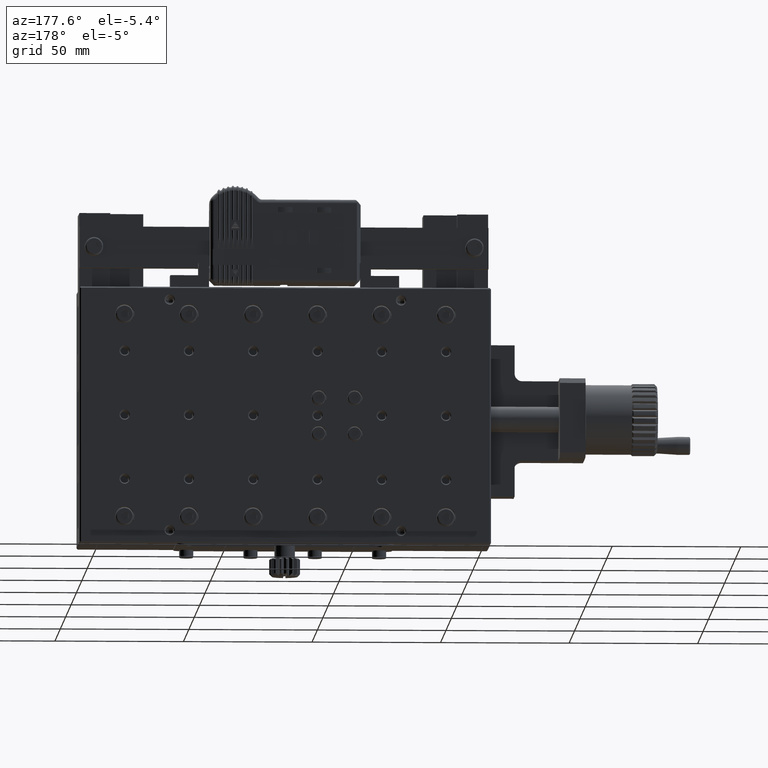
[diagram: clean part render]
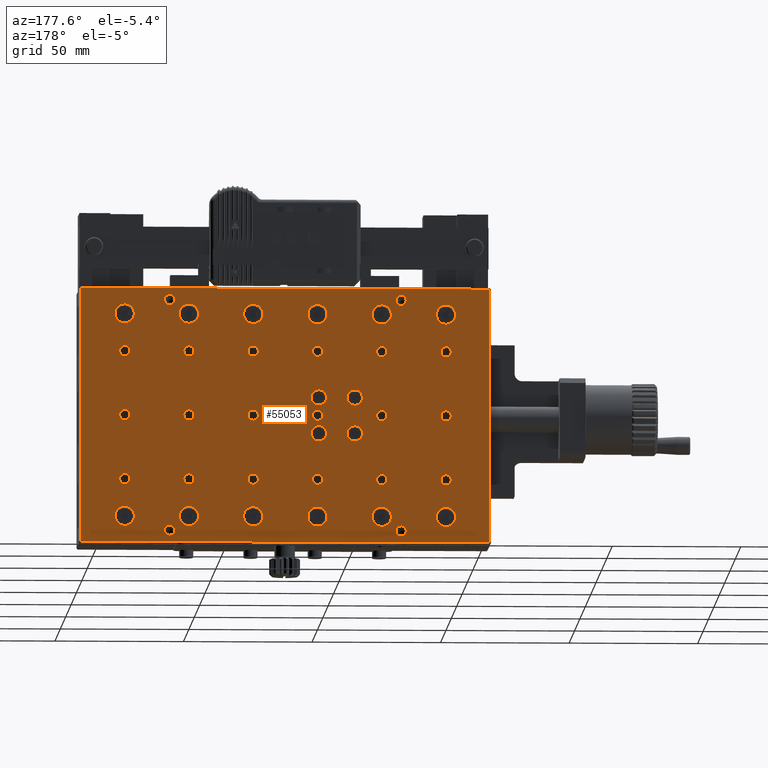
[diagram: same view with one face highlighted and labeled with its STEP entity id]
A machine part, auxiliary view. The second image highlights one B-rep face of the part: STEP entity #55053.
In plain terms, the highlighted planar face has unit normal (0, 1, 0).
Its self-contained STEP definition (entity closure, byte-faithful):
#200 = CARTESIAN_POINT ( 'NONE',  ( -17.50000000000000000, 30.00000000000000000, 39.50000000000000000 ) ) ;
#291 = FACE_BOUND ( 'NONE', #27327, .T. ) ;
#507 = EDGE_LOOP ( 'NONE', ( #53702 ) ) ;
#518 = CARTESIAN_POINT ( 'NONE',  ( -92.50000000000000000, 29.99999999994861355, 25.00000000000000000 ) ) ;
#593 = VERTEX_POINT ( 'NONE', #61540 ) ;
#816 = AXIS2_PLACEMENT_3D ( 'NONE', #200, #11181, #56134 ) ;
#910 = EDGE_LOOP ( 'NONE', ( #34605 ) ) ;
#1724 = EDGE_CURVE ( 'NONE', #3270, #3270, #4641, .T. ) ;
#1951 = FACE_BOUND ( 'NONE', #49653, .T. ) ;
#1953 = DIRECTION ( 'NONE',  ( 1.000000000000000000, 0.000000000000000000, -0.000000000000000000 ) ) ;
#2015 = ORIENTED_EDGE ( 'NONE', *, *, #23332, .T. ) ;
#2084 = ORIENTED_EDGE ( 'NONE', *, *, #37427, .T. ) ;
#2217 = CARTESIAN_POINT ( 'NONE',  ( -17.50000000000000000, 29.99999999994861355, -23.00000000002455636 ) ) ;
#2270 = DIRECTION ( 'NONE',  ( 0.000000000000000000, -0.000000000000000000, 1.000000000000000000 ) ) ;
#2345 = EDGE_LOOP ( 'NONE', ( #13279 ) ) ;
#2346 = CARTESIAN_POINT ( 'NONE',  ( -67.50000000000000000, 30.00000000000000000, 39.50000000000000000 ) ) ;
#2377 = DIRECTION ( 'NONE',  ( 0.000000000000000000, -1.000000000000000000, -0.000000000000000000 ) ) ;
#2528 = VERTEX_POINT ( 'NONE', #22826 ) ;
#2614 = EDGE_LOOP ( 'NONE', ( #42379 ) ) ;
#3270 = VERTEX_POINT ( 'NONE', #54514 ) ;
#3573 = CARTESIAN_POINT ( 'NONE',  ( -92.50000000000000000, 29.99999999994861355, -25.00000000000000000 ) ) ;
#3679 = DIRECTION ( 'NONE',  ( 0.000000000000000000, 0.000000000000000000, 1.000000000000000000 ) ) ;
#3708 = AXIS2_PLACEMENT_3D ( 'NONE', #42658, #2377, #62984 ) ;
#3776 = DIRECTION ( 'NONE',  ( 0.000000000000000000, 0.000000000000000000, 1.000000000000000000 ) ) ;
#3843 = ORIENTED_EDGE ( 'NONE', *, *, #26673, .T. ) ;
#3942 = CARTESIAN_POINT ( 'NONE',  ( -142.5000000000000284, 30.00000000000000000, 43.25000000000000000 ) ) ;
#4238 = ORIENTED_EDGE ( 'NONE', *, *, #63810, .T. ) ;
#4275 = VERTEX_POINT ( 'NONE', #3942 ) ;
#4442 = CARTESIAN_POINT ( 'NONE',  ( -142.5000000000000284, 29.99999999994861355, 25.00000000000000000 ) ) ;
#4571 = EDGE_CURVE ( 'NONE', #4929, #4929, #45488, .T. ) ;
#4641 = CIRCLE ( 'NONE', #21657, 3.000000000000000000 ) ;
#4823 = CARTESIAN_POINT ( 'NONE',  ( -67.50000000000000000, 30.00000000000000000, 43.25000000000000000 ) ) ;
#4929 = VERTEX_POINT ( 'NONE', #34217 ) ;
#5108 = DIRECTION ( 'NONE',  ( 0.000000000000000000, 0.000000000000000000, 1.000000000000000000 ) ) ;
#5256 = DIRECTION ( 'NONE',  ( -0.000000000000000000, 0.000000000000000000, -1.000000000000000000 ) ) ;
#5285 = CIRCLE ( 'NONE', #41420, 2.000000000009549694 ) ;
#5322 = EDGE_CURVE ( 'NONE', #44233, #44233, #10487, .T. ) ;
#5583 = CARTESIAN_POINT ( 'NONE',  ( -35.00000000000000000, 29.99999999994861355, 47.00000000002546585 ) ) ;
#6022 = EDGE_CURVE ( 'NONE', #4275, #4275, #46685, .T. ) ;
#6140 = VERTEX_POINT ( 'NONE', #21128 ) ;
#6240 = CIRCLE ( 'NONE', #43448, 3.000000000000000000 ) ;
#6260 = VERTEX_POINT ( 'NONE', #20899 ) ;
#6432 = AXIS2_PLACEMENT_3D ( 'NONE', #63576, #23257, #17949 ) ;
#6793 = EDGE_LOOP ( 'NONE', ( #17508 ) ) ;
#6826 = AXIS2_PLACEMENT_3D ( 'NONE', #46167, #56170, #25206 ) ;
#6903 = EDGE_LOOP ( 'NONE', ( #51430 ) ) ;
#6938 = FACE_BOUND ( 'NONE', #6793, .T. ) ;
#7165 = EDGE_CURVE ( 'NONE', #26877, #26877, #56420, .T. ) ;
#7170 = EDGE_LOOP ( 'NONE', ( #27929 ) ) ;
#7202 = CIRCLE ( 'NONE', #816, 3.749999999999996447 ) ;
#7216 = EDGE_LOOP ( 'NONE', ( #18420, #59554, #7742, #7572 ) ) ;
#7229 = VERTEX_POINT ( 'NONE', #57818 ) ;
#7351 = DIRECTION ( 'NONE',  ( -0.000000000000000000, -1.000000000000000000, -0.000000000000000000 ) ) ;
#7386 = CARTESIAN_POINT ( 'NONE',  ( -17.50000000000000000, 30.00000000000000000, -39.50000000000000000 ) ) ;
#7563 = DIRECTION ( 'NONE',  ( 0.000000000000000000, 0.000000000000000000, 1.000000000000000000 ) ) ;
#7572 = ORIENTED_EDGE ( 'NONE', *, *, #42808, .T. ) ;
#7742 = ORIENTED_EDGE ( 'NONE', *, *, #45109, .T. ) ;
#7853 = EDGE_CURVE ( 'NONE', #51517, #51517, #22336, .T. ) ;
#7904 = FACE_BOUND ( 'NONE', #37505, .T. ) ;
#7996 = EDGE_CURVE ( 'NONE', #21235, #21235, #45009, .T. ) ;
#8008 = CIRCLE ( 'NONE', #64379, 3.749999999999996447 ) ;
#8242 = FACE_BOUND ( 'NONE', #39453, .T. ) ;
#8326 = EDGE_LOOP ( 'NONE', ( #31666 ) ) ;
#8426 = DIRECTION ( 'NONE',  ( 0.000000000000000000, 0.000000000000000000, 1.000000000000000000 ) ) ;
#8444 = CARTESIAN_POINT ( 'NONE',  ( -17.50000000000000000, 30.00000000006230039, 2.000000000009549694 ) ) ;
#8571 = FACE_BOUND ( 'NONE', #29792, .T. ) ;
#8605 = AXIS2_PLACEMENT_3D ( 'NONE', #54289, #59634, #63663 ) ;
#8909 = EDGE_LOOP ( 'NONE', ( #61962 ) ) ;
#8974 = EDGE_CURVE ( 'NONE', #593, #593, #35820, .T. ) ;
#9164 = EDGE_CURVE ( 'NONE', #6260, #6260, #15407, .T. ) ;
#9253 = VERTEX_POINT ( 'NONE', #24550 ) ;
#9581 = EDGE_LOOP ( 'NONE', ( #19357 ) ) ;
#10434 = CIRCLE ( 'NONE', #14647, 3.000000000000000000 ) ;
#10487 = CIRCLE ( 'NONE', #60467, 2.000000000009549694 ) ;
#10567 = CARTESIAN_POINT ( 'NONE',  ( -67.50000000000000000, 29.99999999994861355, -25.00000000000000000 ) ) ;
#10679 = DIRECTION ( 'NONE',  ( -0.000000000000000000, -1.000000000000000000, -0.000000000000000000 ) ) ;
#10947 = FACE_BOUND ( 'NONE', #910, .T. ) ;
#11169 = EDGE_LOOP ( 'NONE', ( #53454 ) ) ;
#11181 = DIRECTION ( 'NONE',  ( -0.000000000000000000, -1.000000000000000000, -0.000000000000000000 ) ) ;
#11183 = DIRECTION ( 'NONE',  ( 0.000000000000000000, 0.000000000000000000, 1.000000000000000000 ) ) ;
#11222 = EDGE_LOOP ( 'NONE', ( #22032 ) ) ;
#11553 = EDGE_LOOP ( 'NONE', ( #18495 ) ) ;
#11619 = FACE_BOUND ( 'NONE', #17944, .T. ) ;
#11709 = AXIS2_PLACEMENT_3D ( 'NONE', #4442, #18765, #3776 ) ;
#11731 = DIRECTION ( 'NONE',  ( 0.000000000000000000, -1.000000000000000000, -0.000000000000000000 ) ) ;
#11805 = VERTEX_POINT ( 'NONE', #62747 ) ;
#12260 = FACE_BOUND ( 'NONE', #8909, .T. ) ;
#12452 = CARTESIAN_POINT ( 'NONE',  ( -42.50000000000000000, 30.00000000000000000, -35.75000000000000711 ) ) ;
#12459 = CARTESIAN_POINT ( 'NONE',  ( -142.5000000000000284, 30.00000000000000000, -35.75000000000000711 ) ) ;
#12596 = FACE_BOUND ( 'NONE', #2614, .T. ) ;
#12847 = CIRCLE ( 'NONE', #6432, 3.749999999999996447 ) ;
#12946 = ORIENTED_EDGE ( 'NONE', *, *, #4571, .T. ) ;
#13279 = ORIENTED_EDGE ( 'NONE', *, *, #60935, .T. ) ;
#13568 = AXIS2_PLACEMENT_3D ( 'NONE', #518, #61469, #34803 ) ;
#13569 = FACE_BOUND ( 'NONE', #65465, .T. ) ;
#13852 = CARTESIAN_POINT ( 'NONE',  ( -92.50000000000000000, 29.99999999994861355, 0.000000000000000000 ) ) ;
#14006 = CARTESIAN_POINT ( 'NONE',  ( -17.50000000000000000, 29.99999999994861355, -25.00000000000000000 ) ) ;
#14398 = CARTESIAN_POINT ( 'NONE',  ( -125.0000000000000000, 29.99999999994861355, -43.00000000006320988 ) ) ;
#14544 = CARTESIAN_POINT ( 'NONE',  ( -92.50000000000000000, 30.00000000000000000, 39.50000000000000000 ) ) ;
#14579 = DIRECTION ( 'NONE',  ( 0.000000000000000000, 0.000000000000000000, 1.000000000000000000 ) ) ;
#14647 = AXIS2_PLACEMENT_3D ( 'NONE', #18022, #24966, #55931 ) ;
#14741 = CARTESIAN_POINT ( 'NONE',  ( -142.5000000000000284, 30.00000000006230039, 2.000000000009549694 ) ) ;
#14750 = CARTESIAN_POINT ( 'NONE',  ( -35.00000000000000000, 29.99999999994861355, -43.00000000006320988 ) ) ;
#14986 = ORIENTED_EDGE ( 'NONE', *, *, #5322, .T. ) ;
#15407 = CIRCLE ( 'NONE', #44105, 3.749999999999996447 ) ;
#15620 = FACE_BOUND ( 'NONE', #53981, .T. ) ;
#15709 = CIRCLE ( 'NONE', #39117, 3.749999999999996447 ) ;
#15993 = EDGE_CURVE ( 'NONE', #11805, #11805, #51452, .T. ) ;
#16029 = AXIS2_PLACEMENT_3D ( 'NONE', #56449, #20160, #40477 ) ;
#16065 = DIRECTION ( 'NONE',  ( 0.000000000000000000, 0.000000000000000000, 1.000000000000000000 ) ) ;
#16318 = CARTESIAN_POINT ( 'NONE',  ( -142.5000000000000284, 29.99999999994861355, -25.00000000000000000 ) ) ;
#16986 = CARTESIAN_POINT ( 'NONE',  ( -107.0000000000000000, 30.00000000000000000, -7.000000000000000000 ) ) ;
#17253 = FACE_BOUND ( 'NONE', #11222, .T. ) ;
#17254 = VECTOR ( 'NONE', #24833, 1000.000000000000000 ) ;
#17437 = VERTEX_POINT ( 'NONE', #42591 ) ;
#17508 = ORIENTED_EDGE ( 'NONE', *, *, #20330, .T. ) ;
#17543 = CARTESIAN_POINT ( 'NONE',  ( -35.00000000000000000, 29.99999999994861355, 45.00000000000000000 ) ) ;
#17775 = VERTEX_POINT ( 'NONE', #38085 ) ;
#17925 = CARTESIAN_POINT ( 'NONE',  ( -125.0000000000000000, 29.99999999994861355, -45.00000000000000000 ) ) ;
#17944 = EDGE_LOOP ( 'NONE', ( #37110 ) ) ;
#17949 = DIRECTION ( 'NONE',  ( 0.000000000000000000, 0.000000000000000000, 1.000000000000000000 ) ) ;
#17976 = AXIS2_PLACEMENT_3D ( 'NONE', #16318, #57282, #31947 ) ;
#18022 = CARTESIAN_POINT ( 'NONE',  ( -107.0000000000000000, 30.00000000000000000, 7.000000000000000000 ) ) ;
#18106 = CARTESIAN_POINT ( 'NONE',  ( -107.0000000000000000, 30.00000000000000000, -4.000000000000000000 ) ) ;
#18180 = EDGE_CURVE ( 'NONE', #32407, #32407, #8008, .T. ) ;
#18239 = DIRECTION ( 'NONE',  ( 0.000000000000000000, 0.000000000000000000, 1.000000000000000000 ) ) ;
#18420 = ORIENTED_EDGE ( 'NONE', *, *, #27275, .T. ) ;
#18463 = DIRECTION ( 'NONE',  ( -0.000000000000000000, -1.000000000000000000, -0.000000000000000000 ) ) ;
#18495 = ORIENTED_EDGE ( 'NONE', *, *, #28626, .T. ) ;
#18546 = DIRECTION ( 'NONE',  ( 0.000000000000000000, 1.000000000000000000, 0.000000000000000000 ) ) ;
#18568 = EDGE_CURVE ( 'NONE', #6140, #6140, #50548, .T. ) ;
#18765 = DIRECTION ( 'NONE',  ( 0.000000000000000000, -1.000000000000000000, -0.000000000000000000 ) ) ;
#19078 = VERTEX_POINT ( 'NONE', #12459 ) ;
#19231 = AXIS2_PLACEMENT_3D ( 'NONE', #48863, #18546, #2270 ) ;
#19357 = ORIENTED_EDGE ( 'NONE', *, *, #18568, .T. ) ;
#19897 = EDGE_LOOP ( 'NONE', ( #14986 ) ) ;
#20160 = DIRECTION ( 'NONE',  ( -0.000000000000000000, -1.000000000000000000, -0.000000000000000000 ) ) ;
#20296 = CIRCLE ( 'NONE', #57518, 3.749999999999996447 ) ;
#20330 = EDGE_CURVE ( 'NONE', #58389, #58389, #45266, .T. ) ;
#20379 = VERTEX_POINT ( 'NONE', #40687 ) ;
#20587 = FACE_BOUND ( 'NONE', #44190, .T. ) ;
#20753 = AXIS2_PLACEMENT_3D ( 'NONE', #17925, #58856, #54500 ) ;
#20845 = CARTESIAN_POINT ( 'NONE',  ( -159.5000000000000000, 30.00000000000000000, -50.00000000000000000 ) ) ;
#20899 = CARTESIAN_POINT ( 'NONE',  ( -42.50000000000000000, 30.00000000000000000, 43.25000000000000000 ) ) ;
#20942 = AXIS2_PLACEMENT_3D ( 'NONE', #44770, #43466, #59438 ) ;
#21043 = VERTEX_POINT ( 'NONE', #51017 ) ;
#21128 = CARTESIAN_POINT ( 'NONE',  ( -67.50000000000000000, 29.99999999994861355, 26.99999999992996891 ) ) ;
#21136 = EDGE_LOOP ( 'NONE', ( #30410 ) ) ;
#21152 = AXIS2_PLACEMENT_3D ( 'NONE', #59105, #64434, #24116 ) ;
#21235 = VERTEX_POINT ( 'NONE', #41555 ) ;
#21657 = AXIS2_PLACEMENT_3D ( 'NONE', #58117, #18463, #58763 ) ;
#22032 = ORIENTED_EDGE ( 'NONE', *, *, #31856, .T. ) ;
#22070 = CIRCLE ( 'NONE', #13568, 1.999999999929967576 ) ;
#22245 = PLANE ( 'NONE',  #19231 ) ;
#22296 = DIRECTION ( 'NONE',  ( 0.000000000000000000, 0.000000000000000000, 1.000000000000000000 ) ) ;
#22336 = CIRCLE ( 'NONE', #59552, 2.000000000025467628 ) ;
#22563 = FACE_BOUND ( 'NONE', #52251, .T. ) ;
#22574 = ORIENTED_EDGE ( 'NONE', *, *, #7996, .T. ) ;
#22739 = CARTESIAN_POINT ( 'NONE',  ( -67.50000000000000000, 29.99999999994861355, -23.00000000002455636 ) ) ;
#22826 = CARTESIAN_POINT ( 'NONE',  ( -142.5000000000000284, 29.99999999994861355, 26.99999999992996891 ) ) ;
#22835 = ORIENTED_EDGE ( 'NONE', *, *, #1724, .T. ) ;
#23200 = CARTESIAN_POINT ( 'NONE',  ( -42.50000000000000000, 29.99999999994861355, 25.00000000000000000 ) ) ;
#23237 = CIRCLE ( 'NONE', #17976, 1.999999999975444975 ) ;
#23257 = DIRECTION ( 'NONE',  ( -0.000000000000000000, -1.000000000000000000, -0.000000000000000000 ) ) ;
#23332 = EDGE_CURVE ( 'NONE', #43399, #43399, #55663, .T. ) ;
#24116 = DIRECTION ( 'NONE',  ( 0.000000000000000000, 0.000000000000000000, 1.000000000000000000 ) ) ;
#24288 = DIRECTION ( 'NONE',  ( -0.000000000000000000, -1.000000000000000000, -0.000000000000000000 ) ) ;
#24505 = CIRCLE ( 'NONE', #39391, 1.999999999929967576 ) ;
#24550 = CARTESIAN_POINT ( 'NONE',  ( -93.00000000000000000, 30.00000000000000000, 10.00000000000000000 ) ) ;
#24573 = CARTESIAN_POINT ( 'NONE',  ( -67.50000000000000000, 30.00000000006230039, 2.000000000009549694 ) ) ;
#24616 = CARTESIAN_POINT ( 'NONE',  ( -117.5000000000000142, 30.00000000000000000, -39.50000000000000000 ) ) ;
#24833 = DIRECTION ( 'NONE',  ( 0.000000000000000000, -0.000000000000000000, 1.000000000000000000 ) ) ;
#24880 = CARTESIAN_POINT ( 'NONE',  ( -42.50000000000000000, 29.99999999994861355, -25.00000000000000000 ) ) ;
#24966 = DIRECTION ( 'NONE',  ( -0.000000000000000000, -1.000000000000000000, -0.000000000000000000 ) ) ;
#25206 = DIRECTION ( 'NONE',  ( 0.000000000000000000, 0.000000000000000000, 1.000000000000000000 ) ) ;
#25905 = FACE_BOUND ( 'NONE', #7170, .T. ) ;
#26058 = ORIENTED_EDGE ( 'NONE', *, *, #6022, .T. ) ;
#26174 = DIRECTION ( 'NONE',  ( -1.000000000000000000, -0.000000000000000000, 0.000000000000000000 ) ) ;
#26215 = EDGE_LOOP ( 'NONE', ( #61030 ) ) ;
#26265 = ORIENTED_EDGE ( 'NONE', *, *, #63220, .T. ) ;
#26275 = AXIS2_PLACEMENT_3D ( 'NONE', #23200, #63506, #27556 ) ;
#26372 = CARTESIAN_POINT ( 'NONE',  ( -17.50000000000000000, 30.00000000006230039, 0.000000000000000000 ) ) ;
#26411 = DIRECTION ( 'NONE',  ( 0.000000000000000000, 0.000000000000000000, 1.000000000000000000 ) ) ;
#26454 = VERTEX_POINT ( 'NONE', #27106 ) ;
#26673 = EDGE_CURVE ( 'NONE', #34342, #34342, #30290, .T. ) ;
#26877 = VERTEX_POINT ( 'NONE', #31202 ) ;
#27106 = CARTESIAN_POINT ( 'NONE',  ( -92.50000000000000000, 29.99999999994861355, 26.99999999992996891 ) ) ;
#27275 = EDGE_CURVE ( 'NONE', #51356, #35316, #31157, .T. ) ;
#27327 = EDGE_LOOP ( 'NONE', ( #26058 ) ) ;
#27417 = DIRECTION ( 'NONE',  ( 0.000000000000000000, 0.000000000000000000, 1.000000000000000000 ) ) ;
#27556 = DIRECTION ( 'NONE',  ( 0.000000000000000000, 0.000000000000000000, 1.000000000000000000 ) ) ;
#27702 = AXIS2_PLACEMENT_3D ( 'NONE', #42407, #62056, #27417 ) ;
#27890 = CARTESIAN_POINT ( 'NONE',  ( -160.0000000000000000, 30.00000000000000000, 49.50000000000000000 ) ) ;
#27929 = ORIENTED_EDGE ( 'NONE', *, *, #48961, .T. ) ;
#27991 = DIRECTION ( 'NONE',  ( 0.000000000000000000, 0.000000000000000000, 1.000000000000000000 ) ) ;
#28207 = FACE_BOUND ( 'NONE', #6903, .T. ) ;
#28254 = DIRECTION ( 'NONE',  ( 0.000000000000000000, 0.000000000000000000, 1.000000000000000000 ) ) ;
#28417 = AXIS2_PLACEMENT_3D ( 'NONE', #54312, #49655, #50305 ) ;
#28608 = AXIS2_PLACEMENT_3D ( 'NONE', #54238, #54884, #53570 ) ;
#28612 = EDGE_LOOP ( 'NONE', ( #3843 ) ) ;
#28626 = EDGE_CURVE ( 'NONE', #29700, #29700, #51788, .T. ) ;
#28656 = DIRECTION ( 'NONE',  ( 0.000000000000000000, -1.000000000000000000, -0.000000000000000000 ) ) ;
#28728 = VERTEX_POINT ( 'NONE', #33705 ) ;
#29592 = EDGE_CURVE ( 'NONE', #20379, #20379, #46585, .T. ) ;
#29700 = VERTEX_POINT ( 'NONE', #14741 ) ;
#29792 = EDGE_LOOP ( 'NONE', ( #26265 ) ) ;
#29833 = CIRCLE ( 'NONE', #8605, 1.999999999936788342 ) ;
#29992 = DIRECTION ( 'NONE',  ( -0.000000000000000000, -1.000000000000000000, -0.000000000000000000 ) ) ;
#30290 = CIRCLE ( 'NONE', #20753, 1.999999999936788342 ) ;
#30410 = ORIENTED_EDGE ( 'NONE', *, *, #62204, .T. ) ;
#30490 = CARTESIAN_POINT ( 'NONE',  ( -42.50000000000000000, 30.00000000000000000, 39.50000000000000000 ) ) ;
#30912 = FACE_BOUND ( 'NONE', #8326, .T. ) ;
#31071 = ORIENTED_EDGE ( 'NONE', *, *, #58488, .T. ) ;
#31157 = LINE ( 'NONE', #51472, #44223 ) ;
#31162 = EDGE_CURVE ( 'NONE', #43233, #43233, #59041, .T. ) ;
#31202 = CARTESIAN_POINT ( 'NONE',  ( -117.5000000000000142, 30.00000000006230039, 2.000000000009549694 ) ) ;
#31228 = FACE_BOUND ( 'NONE', #26215, .T. ) ;
#31666 = ORIENTED_EDGE ( 'NONE', *, *, #54805, .T. ) ;
#31856 = EDGE_CURVE ( 'NONE', #21043, #21043, #48455, .T. ) ;
#31906 = EDGE_LOOP ( 'NONE', ( #61689 ) ) ;
#31947 = DIRECTION ( 'NONE',  ( 0.000000000000000000, 0.000000000000000000, 1.000000000000000000 ) ) ;
#32096 = VERTEX_POINT ( 'NONE', #61766 ) ;
#32407 = VERTEX_POINT ( 'NONE', #62075 ) ;
#32872 = FACE_BOUND ( 'NONE', #58274, .T. ) ;
#33185 = FACE_BOUND ( 'NONE', #19897, .T. ) ;
#33508 = FACE_BOUND ( 'NONE', #31906, .T. ) ;
#33705 = CARTESIAN_POINT ( 'NONE',  ( -107.0000000000000000, 30.00000000000000000, 10.00000000000000000 ) ) ;
#33838 = FACE_BOUND ( 'NONE', #507, .T. ) ;
#33870 = DIRECTION ( 'NONE',  ( 0.000000000000000000, 0.000000000000000000, 1.000000000000000000 ) ) ;
#34139 = DIRECTION ( 'NONE',  ( 0.000000000000000000, -1.000000000000000000, -0.000000000000000000 ) ) ;
#34217 = CARTESIAN_POINT ( 'NONE',  ( -92.50000000000000000, 30.00000000000000000, 43.25000000000000000 ) ) ;
#34342 = VERTEX_POINT ( 'NONE', #14398 ) ;
#34605 = ORIENTED_EDGE ( 'NONE', *, *, #18180, .T. ) ;
#34803 = DIRECTION ( 'NONE',  ( 0.000000000000000000, 0.000000000000000000, 1.000000000000000000 ) ) ;
#35035 = VERTEX_POINT ( 'NONE', #14750 ) ;
#35316 = VERTEX_POINT ( 'NONE', #54122 ) ;
#35820 = CIRCLE ( 'NONE', #26275, 1.999999999929967576 ) ;
#36106 = CARTESIAN_POINT ( 'NONE',  ( -125.0000000000000000, 29.99999999994861355, 47.00000000002546585 ) ) ;
#36186 = VERTEX_POINT ( 'NONE', #60186 ) ;
#36192 = EDGE_CURVE ( 'NONE', #9253, #9253, #46604, .T. ) ;
#36388 = CARTESIAN_POINT ( 'NONE',  ( -117.5000000000000142, 30.00000000000000000, 39.50000000000000000 ) ) ;
#36434 = ORIENTED_EDGE ( 'NONE', *, *, #51746, .T. ) ;
#37110 = ORIENTED_EDGE ( 'NONE', *, *, #60927, .T. ) ;
#37309 = EDGE_LOOP ( 'NONE', ( #59860 ) ) ;
#37427 = EDGE_CURVE ( 'NONE', #64536, #64536, #46688, .T. ) ;
#37505 = EDGE_LOOP ( 'NONE', ( #36434 ) ) ;
#37567 = AXIS2_PLACEMENT_3D ( 'NONE', #13852, #34139, #5108 ) ;
#37648 = CIRCLE ( 'NONE', #42967, 1.999999999975444975 ) ;
#37842 = EDGE_LOOP ( 'NONE', ( #2084 ) ) ;
#38052 = CARTESIAN_POINT ( 'NONE',  ( -0.4999999999999900080, 30.00000000000000000, 49.50000000000000000 ) ) ;
#38085 = CARTESIAN_POINT ( 'NONE',  ( -17.50000000000000000, 30.00000000000000000, -35.75000000000000711 ) ) ;
#38533 = LINE ( 'NONE', #27890, #65517 ) ;
#38540 = ORIENTED_EDGE ( 'NONE', *, *, #52958, .T. ) ;
#38718 = VERTEX_POINT ( 'NONE', #8444 ) ;
#38898 = DIRECTION ( 'NONE',  ( 0.000000000000000000, -1.000000000000000000, -0.000000000000000000 ) ) ;
#39117 = AXIS2_PLACEMENT_3D ( 'NONE', #7386, #47997, #27991 ) ;
#39391 = AXIS2_PLACEMENT_3D ( 'NONE', #58247, #38898, #28254 ) ;
#39453 = EDGE_LOOP ( 'NONE', ( #4238 ) ) ;
#40128 = ORIENTED_EDGE ( 'NONE', *, *, #63871, .T. ) ;
#40267 = EDGE_LOOP ( 'NONE', ( #40128 ) ) ;
#40477 = DIRECTION ( 'NONE',  ( 0.000000000000000000, 0.000000000000000000, 1.000000000000000000 ) ) ;
#40551 = DIRECTION ( 'NONE',  ( 0.000000000000000000, -1.000000000000000000, -0.000000000000000000 ) ) ;
#40687 = CARTESIAN_POINT ( 'NONE',  ( -92.50000000000000000, 29.99999999994861355, -23.00000000002455636 ) ) ;
#41259 = EDGE_CURVE ( 'NONE', #36186, #36186, #20296, .T. ) ;
#41420 = AXIS2_PLACEMENT_3D ( 'NONE', #26372, #11731, #16065 ) ;
#41555 = CARTESIAN_POINT ( 'NONE',  ( -92.50000000000000000, 29.99999999994861355, 2.000000000009549694 ) ) ;
#42031 = DIRECTION ( 'NONE',  ( -0.000000000000000000, -1.000000000000000000, -0.000000000000000000 ) ) ;
#42379 = ORIENTED_EDGE ( 'NONE', *, *, #64699, .T. ) ;
#42404 = VERTEX_POINT ( 'NONE', #38052 ) ;
#42407 = CARTESIAN_POINT ( 'NONE',  ( -117.5000000000000142, 30.00000000006230039, 0.000000000000000000 ) ) ;
#42591 = CARTESIAN_POINT ( 'NONE',  ( -159.5000000000000000, 30.00000000000000000, 49.50000000000001421 ) ) ;
#42658 = CARTESIAN_POINT ( 'NONE',  ( -42.50000000000000000, 30.00000000006230039, 0.000000000000000000 ) ) ;
#42808 = EDGE_CURVE ( 'NONE', #42404, #51356, #45205, .T. ) ;
#42866 = FACE_BOUND ( 'NONE', #28612, .T. ) ;
#42967 = AXIS2_PLACEMENT_3D ( 'NONE', #14006, #28656, #3679 ) ;
#43233 = VERTEX_POINT ( 'NONE', #56333 ) ;
#43399 = VERTEX_POINT ( 'NONE', #22739 ) ;
#43404 = EDGE_CURVE ( 'NONE', #52815, #52815, #37648, .T. ) ;
#43448 = AXIS2_PLACEMENT_3D ( 'NONE', #16986, #10679, #22296 ) ;
#43466 = DIRECTION ( 'NONE',  ( 0.000000000000000000, -1.000000000000000000, -0.000000000000000000 ) ) ;
#43563 = CARTESIAN_POINT ( 'NONE',  ( -117.5000000000000142, 29.99999999994861355, 26.99999999992996891 ) ) ;
#43725 = VERTEX_POINT ( 'NONE', #64047 ) ;
#43935 = AXIS2_PLACEMENT_3D ( 'NONE', #10567, #59834, #60163 ) ;
#44043 = VERTEX_POINT ( 'NONE', #64372 ) ;
#44105 = AXIS2_PLACEMENT_3D ( 'NONE', #30490, #55797, #11183 ) ;
#44190 = EDGE_LOOP ( 'NONE', ( #58491 ) ) ;
#44223 = VECTOR ( 'NONE', #26174, 1000.000000000000000 ) ;
#44233 = VERTEX_POINT ( 'NONE', #24573 ) ;
#44278 = DIRECTION ( 'NONE',  ( 0.000000000000000000, 0.000000000000000000, 1.000000000000000000 ) ) ;
#44694 = DIRECTION ( 'NONE',  ( 0.000000000000000000, 0.000000000000000000, 1.000000000000000000 ) ) ;
#44770 = CARTESIAN_POINT ( 'NONE',  ( -142.5000000000000284, 30.00000000006230039, 0.000000000000000000 ) ) ;
#44875 = CARTESIAN_POINT ( 'NONE',  ( -0.5000000000000004441, 30.00000000000000000, -50.00000000000000000 ) ) ;
#44977 = CARTESIAN_POINT ( 'NONE',  ( -92.50000000000000000, 30.00000000000000000, -39.50000000000000000 ) ) ;
#45009 = CIRCLE ( 'NONE', #37567, 2.000000000009549694 ) ;
#45109 = EDGE_CURVE ( 'NONE', #17437, #42404, #38533, .T. ) ;
#45205 = LINE ( 'NONE', #44875, #59741 ) ;
#45266 = CIRCLE ( 'NONE', #46314, 3.749999999999996447 ) ;
#45436 = ORIENTED_EDGE ( 'NONE', *, *, #62179, .T. ) ;
#45488 = CIRCLE ( 'NONE', #61478, 3.749999999999996447 ) ;
#45886 = ORIENTED_EDGE ( 'NONE', *, *, #31162, .T. ) ;
#46021 = EDGE_CURVE ( 'NONE', #7229, #7229, #49467, .T. ) ;
#46095 = VERTEX_POINT ( 'NONE', #4823 ) ;
#46167 = CARTESIAN_POINT ( 'NONE',  ( -67.50000000000000000, 29.99999999994861355, 25.00000000000000000 ) ) ;
#46231 = FACE_BOUND ( 'NONE', #40267, .T. ) ;
#46314 = AXIS2_PLACEMENT_3D ( 'NONE', #64688, #55330, #44694 ) ;
#46580 = FACE_BOUND ( 'NONE', #37309, .T. ) ;
#46585 = CIRCLE ( 'NONE', #62567, 1.999999999975444975 ) ;
#46604 = CIRCLE ( 'NONE', #65770, 3.000000000000000000 ) ;
#46685 = CIRCLE ( 'NONE', #21152, 3.749999999999996447 ) ;
#46688 = CIRCLE ( 'NONE', #28608, 1.999999999929967576 ) ;
#46881 = DIRECTION ( 'NONE',  ( -0.000000000000000000, -1.000000000000000000, -0.000000000000000000 ) ) ;
#47299 = EDGE_LOOP ( 'NONE', ( #45886 ) ) ;
#47561 = FACE_BOUND ( 'NONE', #59210, .T. ) ;
#47890 = FACE_BOUND ( 'NONE', #47299, .T. ) ;
#47997 = DIRECTION ( 'NONE',  ( -0.000000000000000000, -1.000000000000000000, -0.000000000000000000 ) ) ;
#48256 = CARTESIAN_POINT ( 'NONE',  ( -67.50000000000000000, 30.00000000000000000, -39.50000000000000000 ) ) ;
#48455 = CIRCLE ( 'NONE', #56956, 1.999999999975444975 ) ;
#48534 = FACE_BOUND ( 'NONE', #56569, .T. ) ;
#48863 = CARTESIAN_POINT ( 'NONE',  ( -160.0000000000000000, 30.00000000000000000, -50.00000000000000000 ) ) ;
#48865 = CIRCLE ( 'NONE', #16029, 2.000000000025467628 ) ;
#48961 = EDGE_CURVE ( 'NONE', #64116, #64116, #7202, .T. ) ;
#49125 = CARTESIAN_POINT ( 'NONE',  ( -17.50000000000000000, 30.00000000000000000, 43.25000000000000000 ) ) ;
#49184 = DIRECTION ( 'NONE',  ( -0.000000000000000000, -1.000000000000000000, -0.000000000000000000 ) ) ;
#49467 = CIRCLE ( 'NONE', #52650, 3.749999999999996447 ) ;
#49653 = EDGE_LOOP ( 'NONE', ( #58843 ) ) ;
#49655 = DIRECTION ( 'NONE',  ( 0.000000000000000000, -1.000000000000000000, -0.000000000000000000 ) ) ;
#50085 = CIRCLE ( 'NONE', #53264, 3.749999999999996447 ) ;
#50157 = LINE ( 'NONE', #20845, #17254 ) ;
#50305 = DIRECTION ( 'NONE',  ( 0.000000000000000000, 0.000000000000000000, 1.000000000000000000 ) ) ;
#50548 = CIRCLE ( 'NONE', #6826, 1.999999999929967576 ) ;
#50785 = VERTEX_POINT ( 'NONE', #36106 ) ;
#51017 = CARTESIAN_POINT ( 'NONE',  ( -42.50000000000000000, 29.99999999994861355, -23.00000000002455636 ) ) ;
#51226 = FACE_BOUND ( 'NONE', #54935, .T. ) ;
#51356 = VERTEX_POINT ( 'NONE', #65466 ) ;
#51430 = ORIENTED_EDGE ( 'NONE', *, *, #58744, .T. ) ;
#51452 = CIRCLE ( 'NONE', #54620, 3.749999999999996447 ) ;
#51472 = CARTESIAN_POINT ( 'NONE',  ( -160.0000000000000000, 30.00000000000000000, -49.50000000000000000 ) ) ;
#51517 = VERTEX_POINT ( 'NONE', #5583 ) ;
#51746 = EDGE_CURVE ( 'NONE', #2528, #2528, #53129, .T. ) ;
#51788 = CIRCLE ( 'NONE', #20942, 2.000000000009549694 ) ;
#52015 = CARTESIAN_POINT ( 'NONE',  ( -93.00000000000000000, 30.00000000000000000, 7.000000000000000000 ) ) ;
#52251 = EDGE_LOOP ( 'NONE', ( #63550 ) ) ;
#52650 = AXIS2_PLACEMENT_3D ( 'NONE', #48256, #59472, #57921 ) ;
#52815 = VERTEX_POINT ( 'NONE', #2217 ) ;
#52870 = FACE_BOUND ( 'NONE', #56349, .T. ) ;
#52958 = EDGE_CURVE ( 'NONE', #50785, #50785, #48865, .T. ) ;
#53129 = CIRCLE ( 'NONE', #11709, 1.999999999929967576 ) ;
#53195 = FACE_BOUND ( 'NONE', #9581, .T. ) ;
#53264 = AXIS2_PLACEMENT_3D ( 'NONE', #2346, #7351, #53577 ) ;
#53358 = CARTESIAN_POINT ( 'NONE',  ( -67.50000000000000000, 30.00000000006230039, 0.000000000000000000 ) ) ;
#53454 = ORIENTED_EDGE ( 'NONE', *, *, #7165, .T. ) ;
#53502 = FACE_BOUND ( 'NONE', #11169, .T. ) ;
#53570 = DIRECTION ( 'NONE',  ( 0.000000000000000000, 0.000000000000000000, 1.000000000000000000 ) ) ;
#53577 = DIRECTION ( 'NONE',  ( 0.000000000000000000, 0.000000000000000000, 1.000000000000000000 ) ) ;
#53682 = DIRECTION ( 'NONE',  ( 0.000000000000000000, -1.000000000000000000, -0.000000000000000000 ) ) ;
#53702 = ORIENTED_EDGE ( 'NONE', *, *, #43404, .T. ) ;
#53835 = FACE_BOUND ( 'NONE', #11553, .T. ) ;
#53981 = EDGE_LOOP ( 'NONE', ( #12946 ) ) ;
#54122 = CARTESIAN_POINT ( 'NONE',  ( -159.5000000000000000, 30.00000000000000000, -49.50000000000000000 ) ) ;
#54161 = FACE_BOUND ( 'NONE', #37842, .T. ) ;
#54238 = CARTESIAN_POINT ( 'NONE',  ( -117.5000000000000142, 29.99999999994861355, 25.00000000000000000 ) ) ;
#54289 = CARTESIAN_POINT ( 'NONE',  ( -35.00000000000000000, 29.99999999994861355, -45.00000000000000000 ) ) ;
#54312 = CARTESIAN_POINT ( 'NONE',  ( -117.5000000000000142, 29.99999999994861355, -25.00000000000000000 ) ) ;
#54361 = VERTEX_POINT ( 'NONE', #18106 ) ;
#54500 = DIRECTION ( 'NONE',  ( 0.000000000000000000, 0.000000000000000000, 1.000000000000000000 ) ) ;
#54514 = CARTESIAN_POINT ( 'NONE',  ( -93.00000000000000000, 30.00000000000000000, -4.000000000000000000 ) ) ;
#54620 = AXIS2_PLACEMENT_3D ( 'NONE', #36388, #56701, #26411 ) ;
#54805 = EDGE_CURVE ( 'NONE', #46095, #46095, #50085, .T. ) ;
#54884 = DIRECTION ( 'NONE',  ( 0.000000000000000000, -1.000000000000000000, -0.000000000000000000 ) ) ;
#54935 = EDGE_LOOP ( 'NONE', ( #63782 ) ) ;
#55053 = ADVANCED_FACE ( 'NONE', ( #61227, #11619, #6938, #291, #20587, #15620, #30912, #51226, #25905, #46231, #10947, #31228, #46580, #8242, #33508, #13569, #17253, #33838, #53835, #22563, #28207, #63188, #53502, #33185, #47890, #8571, #7904, #54161, #52870, #53195, #48534, #12260, #47561, #42866, #12596, #1951, #64168, #58529, #32872 ), #22245, .T. ) ;
#55300 = DIRECTION ( 'NONE',  ( 0.000000000000000000, 0.000000000000000000, 1.000000000000000000 ) ) ;
#55330 = DIRECTION ( 'NONE',  ( -0.000000000000000000, -1.000000000000000000, -0.000000000000000000 ) ) ;
#55663 = CIRCLE ( 'NONE', #43935, 1.999999999975444975 ) ;
#55797 = DIRECTION ( 'NONE',  ( -0.000000000000000000, -1.000000000000000000, -0.000000000000000000 ) ) ;
#55931 = DIRECTION ( 'NONE',  ( 0.000000000000000000, 0.000000000000000000, 1.000000000000000000 ) ) ;
#56134 = DIRECTION ( 'NONE',  ( 0.000000000000000000, 0.000000000000000000, 1.000000000000000000 ) ) ;
#56170 = DIRECTION ( 'NONE',  ( 0.000000000000000000, -1.000000000000000000, -0.000000000000000000 ) ) ;
#56229 = EDGE_CURVE ( 'NONE', #35316, #17437, #50157, .T. ) ;
#56333 = CARTESIAN_POINT ( 'NONE',  ( -42.50000000000000000, 30.00000000006230039, 2.000000000009549694 ) ) ;
#56349 = EDGE_LOOP ( 'NONE', ( #31071 ) ) ;
#56420 = CIRCLE ( 'NONE', #27702, 2.000000000009549694 ) ;
#56449 = CARTESIAN_POINT ( 'NONE',  ( -125.0000000000000000, 29.99999999994861355, 45.00000000000000000 ) ) ;
#56569 = EDGE_LOOP ( 'NONE', ( #22574 ) ) ;
#56701 = DIRECTION ( 'NONE',  ( -0.000000000000000000, -1.000000000000000000, -0.000000000000000000 ) ) ;
#56956 = AXIS2_PLACEMENT_3D ( 'NONE', #24880, #40551, #14579 ) ;
#57282 = DIRECTION ( 'NONE',  ( 0.000000000000000000, -1.000000000000000000, -0.000000000000000000 ) ) ;
#57518 = AXIS2_PLACEMENT_3D ( 'NONE', #44977, #29992, #55300 ) ;
#57818 = CARTESIAN_POINT ( 'NONE',  ( -67.50000000000000000, 30.00000000000000000, -35.75000000000000711 ) ) ;
#57921 = DIRECTION ( 'NONE',  ( 0.000000000000000000, 0.000000000000000000, 1.000000000000000000 ) ) ;
#58001 = DIRECTION ( 'NONE',  ( 0.000000000000000000, 0.000000000000000000, 1.000000000000000000 ) ) ;
#58117 = CARTESIAN_POINT ( 'NONE',  ( -93.00000000000000000, 30.00000000000000000, -7.000000000000000000 ) ) ;
#58247 = CARTESIAN_POINT ( 'NONE',  ( -17.50000000000000000, 29.99999999994861355, 25.00000000000000000 ) ) ;
#58274 = EDGE_LOOP ( 'NONE', ( #22835 ) ) ;
#58389 = VERTEX_POINT ( 'NONE', #12452 ) ;
#58488 = EDGE_CURVE ( 'NONE', #26454, #26454, #22070, .T. ) ;
#58491 = ORIENTED_EDGE ( 'NONE', *, *, #15993, .T. ) ;
#58529 = FACE_BOUND ( 'NONE', #60677, .T. ) ;
#58744 = EDGE_CURVE ( 'NONE', #32096, #32096, #60333, .T. ) ;
#58763 = DIRECTION ( 'NONE',  ( 0.000000000000000000, 0.000000000000000000, 1.000000000000000000 ) ) ;
#58843 = ORIENTED_EDGE ( 'NONE', *, *, #36192, .T. ) ;
#58856 = DIRECTION ( 'NONE',  ( 0.000000000000000000, -1.000000000000000000, -0.000000000000000000 ) ) ;
#59041 = CIRCLE ( 'NONE', #3708, 2.000000000009549694 ) ;
#59105 = CARTESIAN_POINT ( 'NONE',  ( -142.5000000000000284, 30.00000000000000000, 39.50000000000000000 ) ) ;
#59210 = EDGE_LOOP ( 'NONE', ( #38540 ) ) ;
#59438 = DIRECTION ( 'NONE',  ( 0.000000000000000000, 0.000000000000000000, 1.000000000000000000 ) ) ;
#59472 = DIRECTION ( 'NONE',  ( -0.000000000000000000, -1.000000000000000000, -0.000000000000000000 ) ) ;
#59552 = AXIS2_PLACEMENT_3D ( 'NONE', #17543, #46881, #7563 ) ;
#59554 = ORIENTED_EDGE ( 'NONE', *, *, #56229, .T. ) ;
#59634 = DIRECTION ( 'NONE',  ( 0.000000000000000000, -1.000000000000000000, -0.000000000000000000 ) ) ;
#59741 = VECTOR ( 'NONE', #5256, 1000.000000000000000 ) ;
#59834 = DIRECTION ( 'NONE',  ( 0.000000000000000000, -1.000000000000000000, -0.000000000000000000 ) ) ;
#59860 = ORIENTED_EDGE ( 'NONE', *, *, #46021, .T. ) ;
#60163 = DIRECTION ( 'NONE',  ( 0.000000000000000000, 0.000000000000000000, 1.000000000000000000 ) ) ;
#60186 = CARTESIAN_POINT ( 'NONE',  ( -92.50000000000000000, 30.00000000000000000, -35.75000000000000711 ) ) ;
#60333 = CIRCLE ( 'NONE', #28417, 1.999999999975444975 ) ;
#60467 = AXIS2_PLACEMENT_3D ( 'NONE', #53358, #53682, #8426 ) ;
#60677 = EDGE_LOOP ( 'NONE', ( #45436 ) ) ;
#60927 = EDGE_CURVE ( 'NONE', #17775, #17775, #15709, .T. ) ;
#60935 = EDGE_CURVE ( 'NONE', #28728, #28728, #10434, .T. ) ;
#61030 = ORIENTED_EDGE ( 'NONE', *, *, #41259, .T. ) ;
#61227 = FACE_OUTER_BOUND ( 'NONE', #7216, .T. ) ;
#61469 = DIRECTION ( 'NONE',  ( 0.000000000000000000, -1.000000000000000000, -0.000000000000000000 ) ) ;
#61478 = AXIS2_PLACEMENT_3D ( 'NONE', #14544, #49184, #18239 ) ;
#61540 = CARTESIAN_POINT ( 'NONE',  ( -42.50000000000000000, 29.99999999994861355, 26.99999999992996891 ) ) ;
#61689 = ORIENTED_EDGE ( 'NONE', *, *, #8974, .T. ) ;
#61766 = CARTESIAN_POINT ( 'NONE',  ( -117.5000000000000142, 29.99999999994861355, -23.00000000002455636 ) ) ;
#61962 = ORIENTED_EDGE ( 'NONE', *, *, #7853, .T. ) ;
#62056 = DIRECTION ( 'NONE',  ( 0.000000000000000000, -1.000000000000000000, -0.000000000000000000 ) ) ;
#62075 = CARTESIAN_POINT ( 'NONE',  ( -117.5000000000000142, 30.00000000000000000, -35.75000000000000711 ) ) ;
#62179 = EDGE_CURVE ( 'NONE', #54361, #54361, #6240, .T. ) ;
#62204 = EDGE_CURVE ( 'NONE', #43725, #43725, #23237, .T. ) ;
#62567 = AXIS2_PLACEMENT_3D ( 'NONE', #3573, #64194, #33870 ) ;
#62747 = CARTESIAN_POINT ( 'NONE',  ( -117.5000000000000142, 30.00000000000000000, 43.25000000000000000 ) ) ;
#62984 = DIRECTION ( 'NONE',  ( 0.000000000000000000, 0.000000000000000000, 1.000000000000000000 ) ) ;
#63188 = FACE_BOUND ( 'NONE', #21136, .T. ) ;
#63220 = EDGE_CURVE ( 'NONE', #38718, #38718, #5285, .T. ) ;
#63506 = DIRECTION ( 'NONE',  ( 0.000000000000000000, -1.000000000000000000, -0.000000000000000000 ) ) ;
#63550 = ORIENTED_EDGE ( 'NONE', *, *, #29592, .T. ) ;
#63576 = CARTESIAN_POINT ( 'NONE',  ( -142.5000000000000284, 30.00000000000000000, -39.50000000000000000 ) ) ;
#63663 = DIRECTION ( 'NONE',  ( 0.000000000000000000, 0.000000000000000000, 1.000000000000000000 ) ) ;
#63782 = ORIENTED_EDGE ( 'NONE', *, *, #9164, .T. ) ;
#63810 = EDGE_CURVE ( 'NONE', #44043, #44043, #24505, .T. ) ;
#63871 = EDGE_CURVE ( 'NONE', #19078, #19078, #12847, .T. ) ;
#64047 = CARTESIAN_POINT ( 'NONE',  ( -142.5000000000000284, 29.99999999994861355, -23.00000000002455636 ) ) ;
#64116 = VERTEX_POINT ( 'NONE', #49125 ) ;
#64168 = FACE_BOUND ( 'NONE', #2345, .T. ) ;
#64194 = DIRECTION ( 'NONE',  ( 0.000000000000000000, -1.000000000000000000, -0.000000000000000000 ) ) ;
#64372 = CARTESIAN_POINT ( 'NONE',  ( -17.50000000000000000, 29.99999999994861355, 26.99999999992996891 ) ) ;
#64379 = AXIS2_PLACEMENT_3D ( 'NONE', #24616, #24288, #44278 ) ;
#64434 = DIRECTION ( 'NONE',  ( -0.000000000000000000, -1.000000000000000000, -0.000000000000000000 ) ) ;
#64536 = VERTEX_POINT ( 'NONE', #43563 ) ;
#64688 = CARTESIAN_POINT ( 'NONE',  ( -42.50000000000000000, 30.00000000000000000, -39.50000000000000000 ) ) ;
#64699 = EDGE_CURVE ( 'NONE', #35035, #35035, #29833, .T. ) ;
#65465 = EDGE_LOOP ( 'NONE', ( #2015 ) ) ;
#65466 = CARTESIAN_POINT ( 'NONE',  ( -0.4999999999999950040, 30.00000000000000000, -49.50000000000000711 ) ) ;
#65517 = VECTOR ( 'NONE', #1953, 1000.000000000000000 ) ;
#65770 = AXIS2_PLACEMENT_3D ( 'NONE', #52015, #42031, #58001 ) ;